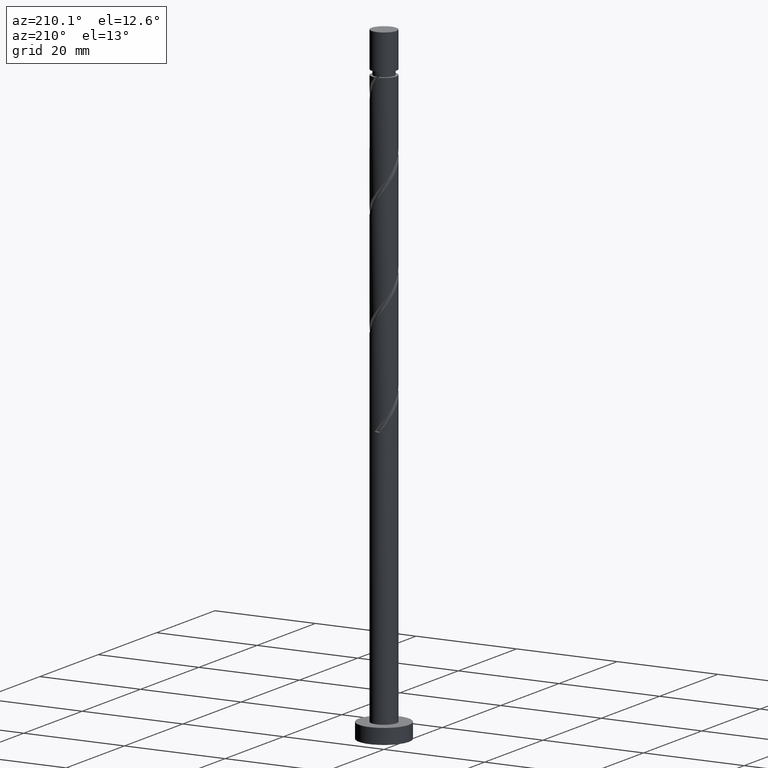
[diagram: clean part render]
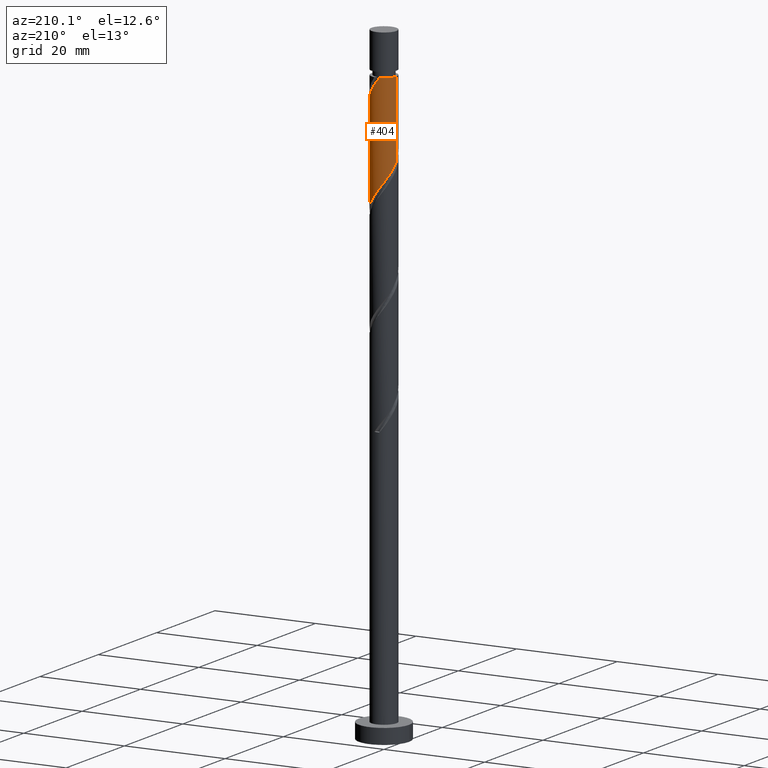
[diagram: same view with one face highlighted and labeled with its STEP entity id]
A machine part, auxiliary view. The second image highlights one B-rep face of the part: STEP entity #404.
In plain terms, the highlighted cylindrical surface (edge-blend (fillet) strip) has radius 2.5 mm, axis along (-0, -0, -1).
Its self-contained STEP definition (entity closure, byte-faithful):
#47 =( BOUNDED_CURVE ( )  B_SPLINE_CURVE ( 2, ( #566, #802, #1168, #794, #1408, #1159, #80, #214, #696, #1272, #559, #811, #1392 ),
 .UNSPECIFIED., .F., .T. ) 
 B_SPLINE_CURVE_WITH_KNOTS ( ( 3, 2, 2, 2, 2, 2, 3 ),
 ( 0.6795322023138555823, 0.6875000000000000000, 0.6999999999999999556, 0.7125000000000000222, 0.7249999999999999778, 0.7375000000000000444, 0.7500000000000000000 ),
 .UNSPECIFIED. ) 
 CURVE ( )  GEOMETRIC_REPRESENTATION_ITEM ( )  RATIONAL_B_SPLINE_CURVE ( ( 0.9039174447099395104, 0.9019565955404693636, 0.9090909090909173873, 0.8978984914501335624, 0.9090909090909173873, 0.8978984914501335624, 0.9090909090909173873, 0.8978984914501335624, 0.9090909090909173873, 0.8978984914501335624, 0.9090909090909173873, 0.8978984914501335624, 0.9090909090909173873 ) ) 
 REPRESENTATION_ITEM ( '' )  );
#50 = CARTESIAN_POINT ( 'NONE',  ( -1.397840163920915035, 2.110172521261064915, 98.76752431721583037 ) ) ;
#71 = LINE ( 'NONE', #1281, #545 ) ;
#80 = CARTESIAN_POINT ( 'NONE',  ( 1.689672165344845656, 1.842554741020975273, 113.8716909838824876 ) ) ;
#129 = CARTESIAN_POINT ( 'NONE',  ( -2.371204735821961673, 0.8855355973484242416, 100.8508576505491732 ) ) ;
#162 = ORIENTED_EDGE ( 'NONE', *, *, #1268, .T. ) ;
#176 = CARTESIAN_POINT ( 'NONE',  ( 1.230236279064654825, 2.176354451295366754, 95.12169098388253019 ) ) ;
#190 = DIRECTION ( 'NONE',  ( -0.000000000000000000, -0.000000000000000000, -1.000000000000000000 ) ) ;
#204 = VERTEX_POINT ( 'NONE', #644 ) ;
#214 = CARTESIAN_POINT ( 'NONE',  ( 1.397840163920917478, 2.110172521261065803, 114.3925243172158019 ) ) ;
#216 = CARTESIAN_POINT ( 'NONE',  ( 0.4974937185533109263, 2.450000000000001066, 96.16335765054917317 ) ) ;
#226 = CARTESIAN_POINT ( 'NONE',  ( 2.500000000000000444, 3.643323976319009630E-15, 91.61982675868610215 ) ) ;
#251 = DIRECTION ( 'NONE',  ( -0.000000000000000000, -0.000000000000000000, -1.000000000000000000 ) ) ;
#287 = EDGE_CURVE ( 'NONE', #1413, #320, #971, .T. ) ;
#303 = CARTESIAN_POINT ( 'NONE',  ( -0.2839469933725883299, 2.483822478550886892, 97.20502431721585879 ) ) ;
#309 = CARTESIAN_POINT ( 'NONE',  ( -0.4974937185533090944, 2.449999999999995737, 116.9966909838824591 ) ) ;
#320 = VERTEX_POINT ( 'NONE', #1275 ) ;
#340 = CARTESIAN_POINT ( 'NONE',  ( -1.037592995212144542, 2.274511107092399342, 98.24669098388250177 ) ) ;
#373 = CARTESIAN_POINT ( 'NONE',  ( -2.500000000000000000, -1.679227511719049326E-15, 102.0364934253527736 ) ) ;
#398 = EDGE_LOOP ( 'NONE', ( #1009, #808, #605, #1328, #162 ) ) ;
#404 = ADVANCED_FACE ( 'NONE', ( #946 ), #1435, .T. ) ;
#410 = DIRECTION ( 'NONE',  ( -1.000000000000000000, 0.000000000000000000, 0.000000000000000000 ) ) ;
#449 = CARTESIAN_POINT ( 'NONE',  ( 2.500000000000000000, 3.061616997868382648E-16, 125.0000000000000000 ) ) ;
#451 = CARTESIAN_POINT ( 'NONE',  ( 2.110172521261064915, 1.397840163920914813, 93.55919098388250177 ) ) ;
#458 = CARTESIAN_POINT ( 'NONE',  ( 0.1094518397581963065, 2.528795264178038238, 96.68419098388250177 ) ) ;
#470 = DIRECTION ( 'NONE',  ( -1.000000000000000000, 0.000000000000000000, 0.000000000000000000 ) ) ;
#491 = EDGE_CURVE ( 'NONE', #1514, #320, #679, .T. ) ;
#531 = VERTEX_POINT ( 'NONE', #309 ) ;
#533 = EDGE_CURVE ( 'NONE', #1514, #531, #47, .T. ) ;
#545 = VECTOR ( 'NONE', #190, 1000.000000000000000 ) ;
#549 = CIRCLE ( 'NONE', #651, 2.499999999999997780 ) ;
#559 = CARTESIAN_POINT ( 'NONE',  ( 0.2839469933725896067, 2.483822478550889112, 115.9550243172158588 ) ) ;
#566 = CARTESIAN_POINT ( 'NONE',  ( 2.500000000000002665, 9.145792697755492489E-16, 111.1235552090789156 ) ) ;
#588 = EDGE_CURVE ( 'NONE', #204, #1413, #71, .T. ) ;
#605 = ORIENTED_EDGE ( 'NONE', *, *, #287, .F. ) ;
#611 = CARTESIAN_POINT ( 'NONE',  ( -2.176354451295366754, 1.230236279064654159, 100.3300243172158872 ) ) ;
#644 = CARTESIAN_POINT ( 'NONE',  ( -2.499999999999997780, 0.000000000000000000, 116.9966909838825018 ) ) ;
#651 = AXIS2_PLACEMENT_3D ( 'NONE', #1197, #251, #470 ) ;
#679 = LINE ( 'NONE', #449, #1029 ) ;
#688 = CARTESIAN_POINT ( 'NONE',  ( 0.000000000000000000, 0.000000000000000000, 125.0000000000000000 ) ) ;
#696 = CARTESIAN_POINT ( 'NONE',  ( 1.037592995212146318, 2.274511107092401563, 114.9133576505491590 ) ) ;
#698 = CARTESIAN_POINT ( 'NONE',  ( 2.483822478550886892, 0.2839469933725879969, 91.99669098388253019 ) ) ;
#732 = CARTESIAN_POINT ( 'NONE',  ( -2.499999999999999556, 0.2512594538148058554, 101.7021888499449318 ) ) ;
#780 = DIRECTION ( 'NONE',  ( -0.000000000000000000, -0.000000000000000000, -1.000000000000000000 ) ) ;
#789 = CARTESIAN_POINT ( 'NONE',  ( 0.8855355973484245746, 2.371204735821961673, 95.64252431721584458 ) ) ;
#794 = CARTESIAN_POINT ( 'NONE',  ( 2.371204735821965226, 0.8855355973484243526, 112.3091909838825160 ) ) ;
#802 = CARTESIAN_POINT ( 'NONE',  ( 2.500000000000000000, 0.2512594538148144596, 111.4578597844867573 ) ) ;
#808 = ORIENTED_EDGE ( 'NONE', *, *, #491, .T. ) ;
#811 = CARTESIAN_POINT ( 'NONE',  ( -0.1094518397581954738, 2.528795264178041347, 116.4758576505491590 ) ) ;
#853 = CARTESIAN_POINT ( 'NONE',  ( -2.500000000000000000, -1.679227511719049326E-15, 102.0364934253527736 ) ) ;
#940 = CARTESIAN_POINT ( 'NONE',  ( 2.438849692923734214, 0.6773458265033729386, 92.51752431721588721 ) ) ;
#946 = FACE_OUTER_BOUND ( 'NONE', #398, .T. ) ;
#971 =( BOUNDED_CURVE ( )  B_SPLINE_CURVE ( 2, ( #853, #732, #1217, #129, #611, #977, #1056, #50, #340, #1546, #303, #458, #216, #789, #176, #1177, #1511, #451, #1193, #940, #698, #1386, #226 ),
 .UNSPECIFIED., .F., .T. ) 
 B_SPLINE_CURVE_WITH_KNOTS ( ( 3, 2, 2, 2, 2, 2, 2, 2, 2, 2, 2, 3 ),
 ( 0.4295322023138552492, 0.4375000000000000000, 0.4500000000000000111, 0.4625000000000000222, 0.4749999999999999778, 0.4874999999999999889, 0.5000000000000000000, 0.5124999999999999556, 0.5250000000000000222, 0.5374999999999999778, 0.5500000000000000444, 0.5545322023138551382 ),
 .UNSPECIFIED. ) 
 CURVE ( )  GEOMETRIC_REPRESENTATION_ITEM ( )  RATIONAL_B_SPLINE_CURVE ( ( 0.9039174447099354026, 0.9019565955404647006, 0.9090909090909129464, 0.8978984914501291215, 0.9090909090909129464, 0.8978984914501291215, 0.9090909090909129464, 0.8978984914501291215, 0.9090909090909129464, 0.8978984914501291215, 0.9090909090909129464, 0.8978984914501291215, 0.9090909090909129464, 0.8978984914501291215, 0.9090909090909129464, 0.8978984914501291215, 0.9090909090909129464, 0.8978984914501291215, 0.9090909090909129464, 0.8978984914501291215, 0.9090909090909129464, 0.9050328050005773672, 0.9039174447099351806 ) ) 
 REPRESENTATION_ITEM ( '' )  );
#977 = CARTESIAN_POINT ( 'NONE',  ( -1.981504166768771835, 1.574936960780884299, 99.80919098388251598 ) ) ;
#1009 = ORIENTED_EDGE ( 'NONE', *, *, #533, .F. ) ;
#1029 = VECTOR ( 'NONE', #1535, 1000.000000000000000 ) ;
#1056 = CARTESIAN_POINT ( 'NONE',  ( -1.689672165344843657, 1.842554741020974607, 99.28835765054915896 ) ) ;
#1159 = CARTESIAN_POINT ( 'NONE',  ( 1.981504166768774056, 1.574936960780884743, 113.3508576505491590 ) ) ;
#1168 = CARTESIAN_POINT ( 'NONE',  ( 2.450000000000002842, 0.4974937185533100381, 111.7883576505491732 ) ) ;
#1177 = CARTESIAN_POINT ( 'NONE',  ( 1.574936960780884521, 1.981504166768771835, 94.60085765054917317 ) ) ;
#1193 = CARTESIAN_POINT ( 'NONE',  ( 2.274511107092399786, 1.037592995212144098, 93.03835765054917317 ) ) ;
#1197 = CARTESIAN_POINT ( 'NONE',  ( 0.000000000000000000, 0.000000000000000000, 116.9966909838825018 ) ) ;
#1217 = CARTESIAN_POINT ( 'NONE',  ( -2.450000000000001066, 0.4974937185533104822, 101.3716909838825302 ) ) ;
#1268 = EDGE_CURVE ( 'NONE', #204, #531, #549, .T. ) ;
#1272 = CARTESIAN_POINT ( 'NONE',  ( 0.6773458265033748260, 2.438849692923736434, 115.4341909838825302 ) ) ;
#1275 = CARTESIAN_POINT ( 'NONE',  ( 2.500000000000000444, 3.643323976319009630E-15, 91.61982675868610215 ) ) ;
#1281 = CARTESIAN_POINT ( 'NONE',  ( -2.500000000000000000, 0.000000000000000000, 125.0000000000000000 ) ) ;
#1328 = ORIENTED_EDGE ( 'NONE', *, *, #588, .F. ) ;
#1364 = AXIS2_PLACEMENT_3D ( 'NONE', #688, #780, #410 ) ;
#1373 = CARTESIAN_POINT ( 'NONE',  ( 2.500000000000002665, 9.145792697755492489E-16, 111.1235552090789298 ) ) ;
#1386 = CARTESIAN_POINT ( 'NONE',  ( 2.500000000000000000, 0.1424343436160837306, 91.80933784789338858 ) ) ;
#1392 = CARTESIAN_POINT ( 'NONE',  ( -0.4974937185533090944, 2.449999999999995293, 116.9966909838824591 ) ) ;
#1408 = CARTESIAN_POINT ( 'NONE',  ( 2.176354451295369419, 1.230236279064654825, 112.8300243172158446 ) ) ;
#1413 = VERTEX_POINT ( 'NONE', #373 ) ;
#1435 = CYLINDRICAL_SURFACE ( 'NONE', #1364, 2.500000000000000000 ) ;
#1511 = CARTESIAN_POINT ( 'NONE',  ( 1.842554741020975495, 1.689672165344843435, 94.08002431721584458 ) ) ;
#1514 = VERTEX_POINT ( 'NONE', #1373 ) ;
#1535 = DIRECTION ( 'NONE',  ( -0.000000000000000000, -0.000000000000000000, -1.000000000000000000 ) ) ;
#1546 = CARTESIAN_POINT ( 'NONE',  ( -0.6773458265033730497, 2.438849692923733770, 97.72585765054918738 ) ) ;